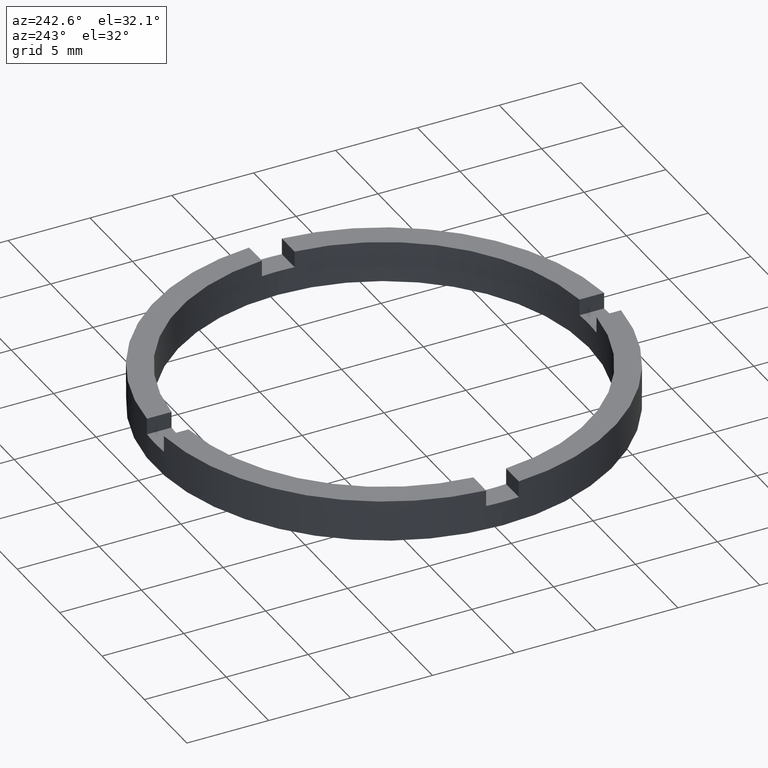
[diagram: clean part render]
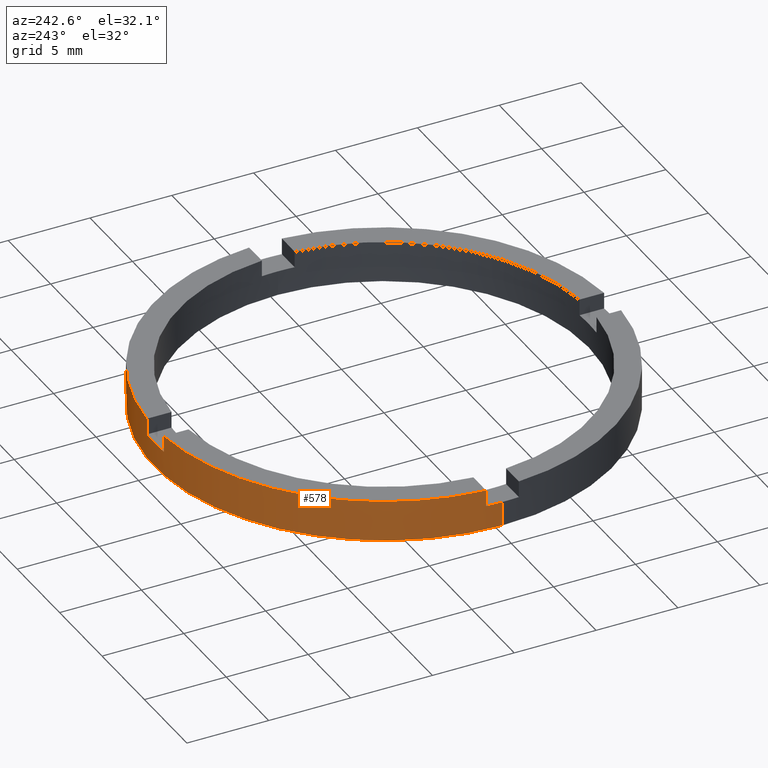
[diagram: same view with one face highlighted and labeled with its STEP entity id]
A machine part, auxiliary view. The second image highlights one B-rep face of the part: STEP entity #578.
In plain terms, the highlighted cylindrical surface (partial cylindrical patch) has radius 14 mm, axis along (-0, -0, -1).
Its self-contained STEP definition (entity closure, byte-faithful):
#1 = CARTESIAN_POINT ( 'NONE',  ( 0.000000000000000000, 0.000000000000000000, 1.500000000000000000 ) ) ;
#7 = DIRECTION ( 'NONE',  ( 0.000000000000000000, 0.000000000000000000, 1.000000000000000000 ) ) ;
#14 = DIRECTION ( 'NONE',  ( 0.000000000000000000, 0.000000000000000000, 1.000000000000000000 ) ) ;
#19 = DIRECTION ( 'NONE',  ( 0.000000000000000000, 0.000000000000000000, 1.000000000000000000 ) ) ;
#22 = EDGE_CURVE ( 'NONE', #123, #144, #452, .T. ) ;
#40 = CARTESIAN_POINT ( 'NONE',  ( 14.00000000000000000, 1.714505518806294638E-15, 1.500000000000000000 ) ) ;
#42 = CARTESIAN_POINT ( 'NONE',  ( 13.96424004376895311, 0.9999999999998404610, 2.500000000000000000 ) ) ;
#55 = DIRECTION ( 'NONE',  ( 0.000000000000000000, -0.000000000000000000, 1.000000000000000000 ) ) ;
#58 = EDGE_CURVE ( 'NONE', #441, #231, #734, .T. ) ;
#71 = CARTESIAN_POINT ( 'NONE',  ( -13.96424004376894246, 0.9999999999999772404, 2.500000000000000000 ) ) ;
#76 = CARTESIAN_POINT ( 'NONE',  ( -14.00000000000000000, 0.000000000000000000, 1.500000000000000000 ) ) ;
#103 = ORIENTED_EDGE ( 'NONE', *, *, #283, .T. ) ;
#113 = EDGE_CURVE ( 'NONE', #123, #268, #227, .T. ) ;
#115 = FACE_OUTER_BOUND ( 'NONE', #665, .T. ) ;
#119 = ORIENTED_EDGE ( 'NONE', *, *, #58, .T. ) ;
#123 = VERTEX_POINT ( 'NONE', #303 ) ;
#126 = VECTOR ( 'NONE', #187, 1000.000000000000000 ) ;
#127 = ORIENTED_EDGE ( 'NONE', *, *, #508, .F. ) ;
#144 = VERTEX_POINT ( 'NONE', #71 ) ;
#145 = VERTEX_POINT ( 'NONE', #42 ) ;
#146 = CARTESIAN_POINT ( 'NONE',  ( -1.000000000000024647, 13.96424004376894068, 1.500000000000000000 ) ) ;
#151 = ORIENTED_EDGE ( 'NONE', *, *, #312, .F. ) ;
#172 = DIRECTION ( 'NONE',  ( 0.000000000000000000, 0.000000000000000000, 1.000000000000000000 ) ) ;
#178 = AXIS2_PLACEMENT_3D ( 'NONE', #513, #14, #302 ) ;
#187 = DIRECTION ( 'NONE',  ( -0.000000000000000000, -0.000000000000000000, -1.000000000000000000 ) ) ;
#203 = CYLINDRICAL_SURFACE ( 'NONE', #563, 14.00000000000000000 ) ;
#204 = DIRECTION ( 'NONE',  ( -0.000000000000000000, -0.000000000000000000, -1.000000000000000000 ) ) ;
#227 = CIRCLE ( 'NONE', #689, 14.00000000000000000 ) ;
#228 = CARTESIAN_POINT ( 'NONE',  ( 0.000000000000000000, 0.000000000000000000, 1.500000000000000000 ) ) ;
#230 = CIRCLE ( 'NONE', #286, 14.00000000000000000 ) ;
#231 = VERTEX_POINT ( 'NONE', #343 ) ;
#249 = CARTESIAN_POINT ( 'NONE',  ( 0.9999999999999753530, 13.96424004376894423, 2.500000000000000000 ) ) ;
#253 = DIRECTION ( 'NONE',  ( 1.000000000000000000, 0.000000000000000000, 0.000000000000000000 ) ) ;
#254 = DIRECTION ( 'NONE',  ( -1.000000000000000000, 0.000000000000000000, 0.000000000000000000 ) ) ;
#255 = ORIENTED_EDGE ( 'NONE', *, *, #272, .F. ) ;
#268 = VERTEX_POINT ( 'NONE', #76 ) ;
#270 = DIRECTION ( 'NONE',  ( 1.000000000000000000, 0.000000000000000000, 0.000000000000000000 ) ) ;
#272 = EDGE_CURVE ( 'NONE', #441, #612, #230, .T. ) ;
#275 = VERTEX_POINT ( 'NONE', #146 ) ;
#283 = EDGE_CURVE ( 'NONE', #664, #275, #750, .T. ) ;
#286 = AXIS2_PLACEMENT_3D ( 'NONE', #228, #172, #406 ) ;
#298 = CARTESIAN_POINT ( 'NONE',  ( 13.96424004376895311, 0.9999999999998404610, 2.500000000000000000 ) ) ;
#300 = CARTESIAN_POINT ( 'NONE',  ( -13.96424004376894246, 0.9999999999999772404, 2.500000000000000000 ) ) ;
#302 = DIRECTION ( 'NONE',  ( 1.000000000000000000, 0.000000000000000000, 0.000000000000000000 ) ) ;
#303 = CARTESIAN_POINT ( 'NONE',  ( -13.96424004376894246, 0.9999999999999772404, 1.500000000000000000 ) ) ;
#306 = DIRECTION ( 'NONE',  ( 0.000000000000000000, 0.000000000000000000, 1.000000000000000000 ) ) ;
#307 = DIRECTION ( 'NONE',  ( -0.000000000000000000, -0.000000000000000000, -1.000000000000000000 ) ) ;
#312 = EDGE_CURVE ( 'NONE', #678, #275, #695, .T. ) ;
#332 = AXIS2_PLACEMENT_3D ( 'NONE', #1, #55, #448 ) ;
#333 = CARTESIAN_POINT ( 'NONE',  ( 13.96424004376895311, 0.9999999999998404610, 1.500000000000000000 ) ) ;
#334 = DIRECTION ( 'NONE',  ( 0.000000000000000000, 0.000000000000000000, 1.000000000000000000 ) ) ;
#343 = CARTESIAN_POINT ( 'NONE',  ( 14.00000000000000000, 1.714505518806294638E-15, 0.000000000000000000 ) ) ;
#346 = CARTESIAN_POINT ( 'NONE',  ( -14.00000000000000000, 0.000000000000000000, 0.000000000000000000 ) ) ;
#353 = CARTESIAN_POINT ( 'NONE',  ( 0.000000000000000000, 0.000000000000000000, 2.500000000000000000 ) ) ;
#362 = AXIS2_PLACEMENT_3D ( 'NONE', #552, #7, #609 ) ;
#378 = VECTOR ( 'NONE', #479, 1000.000000000000000 ) ;
#389 = VERTEX_POINT ( 'NONE', #346 ) ;
#395 = LINE ( 'NONE', #575, #378 ) ;
#398 = EDGE_CURVE ( 'NONE', #145, #458, #724, .T. ) ;
#403 = VECTOR ( 'NONE', #334, 1000.000000000000000 ) ;
#404 = VECTOR ( 'NONE', #703, 1000.000000000000000 ) ;
#406 = DIRECTION ( 'NONE',  ( 1.000000000000000000, 0.000000000000000000, 0.000000000000000000 ) ) ;
#414 = LINE ( 'NONE', #637, #404 ) ;
#425 = CARTESIAN_POINT ( 'NONE',  ( -1.000000000000024647, 13.96424004376894068, 2.500000000000000000 ) ) ;
#433 = EDGE_CURVE ( 'NONE', #664, #144, #472, .T. ) ;
#441 = VERTEX_POINT ( 'NONE', #40 ) ;
#448 = DIRECTION ( 'NONE',  ( 1.000000000000000000, 0.000000000000000000, 0.000000000000000000 ) ) ;
#452 = LINE ( 'NONE', #300, #403 ) ;
#458 = VERTEX_POINT ( 'NONE', #249 ) ;
#472 = CIRCLE ( 'NONE', #178, 14.00000000000000000 ) ;
#474 = VECTOR ( 'NONE', #565, 1000.000000000000000 ) ;
#479 = DIRECTION ( 'NONE',  ( 0.000000000000000000, 0.000000000000000000, 1.000000000000000000 ) ) ;
#496 = CARTESIAN_POINT ( 'NONE',  ( 0.9999999999999753530, 13.96424004376894423, 1.500000000000000000 ) ) ;
#508 = EDGE_CURVE ( 'NONE', #268, #389, #414, .T. ) ;
#513 = CARTESIAN_POINT ( 'NONE',  ( 0.000000000000000000, 0.000000000000000000, 2.500000000000000000 ) ) ;
#545 = CARTESIAN_POINT ( 'NONE',  ( -1.000000000000024647, 13.96424004376894068, 2.500000000000000000 ) ) ;
#552 = CARTESIAN_POINT ( 'NONE',  ( 0.000000000000000000, 0.000000000000000000, 0.000000000000000000 ) ) ;
#553 = CARTESIAN_POINT ( 'NONE',  ( 0.000000000000000000, 0.000000000000000000, 2.500000000000000000 ) ) ;
#563 = AXIS2_PLACEMENT_3D ( 'NONE', #553, #204, #254 ) ;
#565 = DIRECTION ( 'NONE',  ( -0.000000000000000000, -0.000000000000000000, -1.000000000000000000 ) ) ;
#575 = CARTESIAN_POINT ( 'NONE',  ( 0.9999999999999753530, 13.96424004376894423, 2.500000000000000000 ) ) ;
#578 = ADVANCED_FACE ( 'NONE', ( #115 ), #203, .T. ) ;
#609 = DIRECTION ( 'NONE',  ( 1.000000000000000000, 0.000000000000000000, 0.000000000000000000 ) ) ;
#612 = VERTEX_POINT ( 'NONE', #333 ) ;
#616 = ORIENTED_EDGE ( 'NONE', *, *, #433, .F. ) ;
#617 = CARTESIAN_POINT ( 'NONE',  ( 14.00000000000000000, 1.714505518806294638E-15, 2.500000000000000000 ) ) ;
#630 = ORIENTED_EDGE ( 'NONE', *, *, #113, .F. ) ;
#634 = ORIENTED_EDGE ( 'NONE', *, *, #398, .F. ) ;
#637 = CARTESIAN_POINT ( 'NONE',  ( -14.00000000000000000, 0.000000000000000000, 2.500000000000000000 ) ) ;
#641 = ORIENTED_EDGE ( 'NONE', *, *, #22, .T. ) ;
#653 = CARTESIAN_POINT ( 'NONE',  ( 0.000000000000000000, 0.000000000000000000, 1.500000000000000000 ) ) ;
#659 = LINE ( 'NONE', #298, #126 ) ;
#664 = VERTEX_POINT ( 'NONE', #425 ) ;
#665 = EDGE_LOOP ( 'NONE', ( #255, #119, #767, #127, #630, #641, #616, #103, #151, #666, #634, #772 ) ) ;
#666 = ORIENTED_EDGE ( 'NONE', *, *, #777, .T. ) ;
#678 = VERTEX_POINT ( 'NONE', #496 ) ;
#687 = CIRCLE ( 'NONE', #362, 14.00000000000000000 ) ;
#689 = AXIS2_PLACEMENT_3D ( 'NONE', #653, #19, #253 ) ;
#695 = CIRCLE ( 'NONE', #332, 14.00000000000000000 ) ;
#703 = DIRECTION ( 'NONE',  ( -0.000000000000000000, -0.000000000000000000, -1.000000000000000000 ) ) ;
#724 = CIRCLE ( 'NONE', #756, 14.00000000000000000 ) ;
#734 = LINE ( 'NONE', #617, #474 ) ;
#750 = LINE ( 'NONE', #545, #751 ) ;
#751 = VECTOR ( 'NONE', #307, 1000.000000000000000 ) ;
#753 = EDGE_CURVE ( 'NONE', #231, #389, #687, .T. ) ;
#756 = AXIS2_PLACEMENT_3D ( 'NONE', #353, #306, #270 ) ;
#767 = ORIENTED_EDGE ( 'NONE', *, *, #753, .T. ) ;
#772 = ORIENTED_EDGE ( 'NONE', *, *, #782, .T. ) ;
#777 = EDGE_CURVE ( 'NONE', #678, #458, #395, .T. ) ;
#782 = EDGE_CURVE ( 'NONE', #145, #612, #659, .T. ) ;